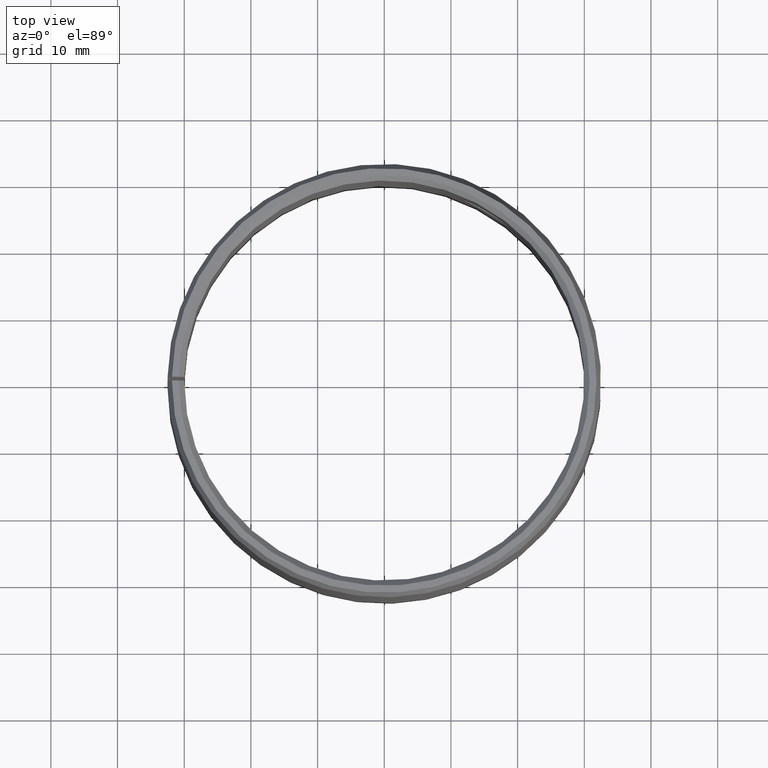
[diagram: clean part render]
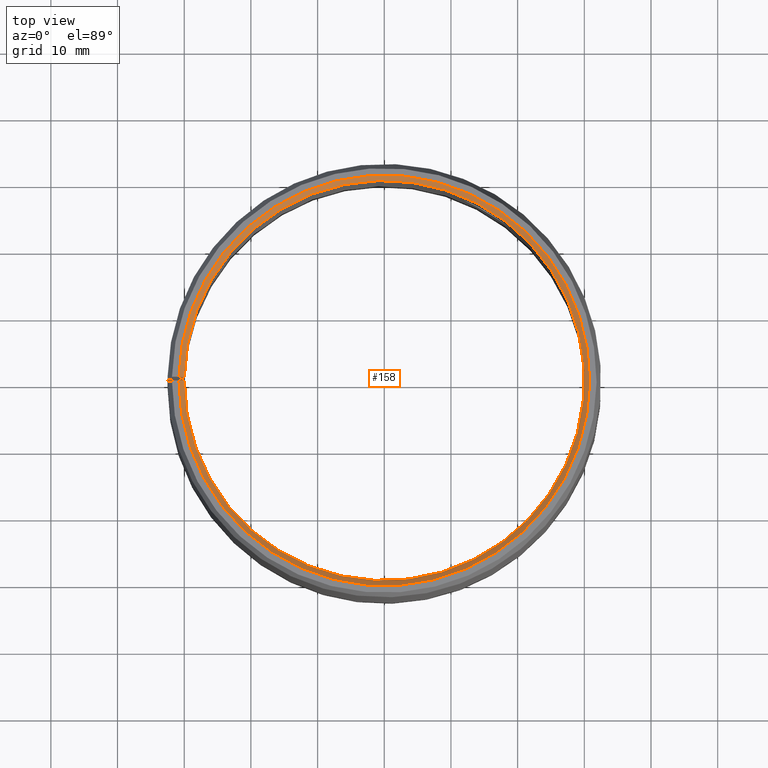
[diagram: same view with one face highlighted and labeled with its STEP entity id]
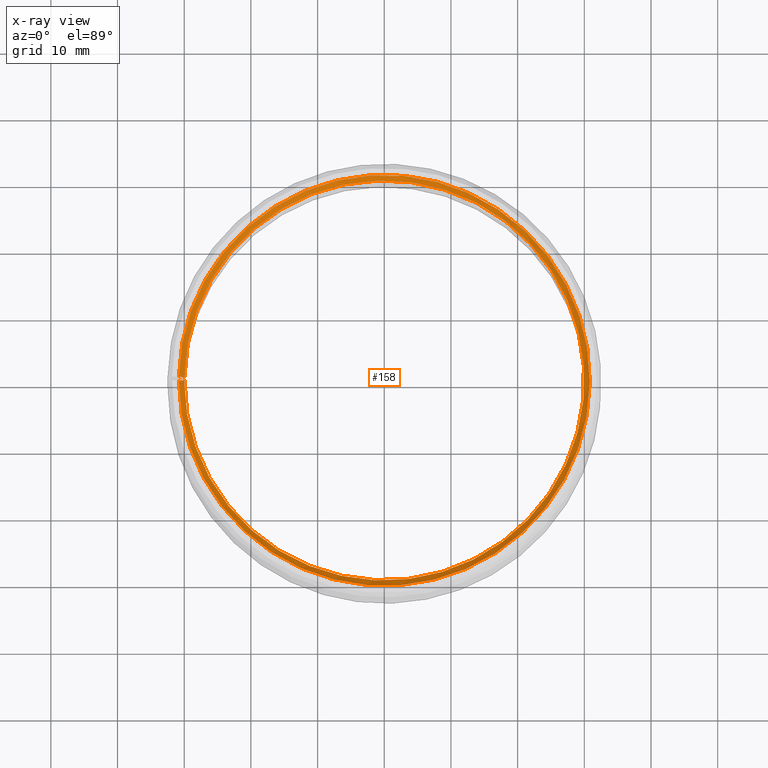
[diagram: x-ray of the same camera — body ghosted, the highlighted face saturated]
A machine part, top view. The second image highlights one B-rep face of the part: STEP entity #158.
The next image is the same camera in x-ray: the body ghosted, the highlighted face saturated — about 0% of this face is hidden behind the body in this view.
In plain terms, the highlighted conical surface has half-angle 45 deg.
Its self-contained STEP definition (entity closure, byte-faithful):
#158=ADVANCED_FACE('',(#176),#177,.F.);
#176=FACE_OUTER_BOUND('',#202,.T.);
#177=CONICAL_SURFACE('',#203,0.0308,0.785398163397448);
#202=EDGE_LOOP('',(#252,#253,#254,#255));
#203=AXIS2_PLACEMENT_3D('',#256,#257,#258);
#252=ORIENTED_EDGE('',*,*,#319,.T.);
#253=ORIENTED_EDGE('',*,*,#320,.F.);
#254=ORIENTED_EDGE('',*,*,#317,.F.);
#255=ORIENTED_EDGE('',*,*,#321,.T.);
#256=CARTESIAN_POINT('',(-1.04083408558608E-017,-6.93889390390723E-018,0.06));
#257=DIRECTION('',(-6.12323399573677E-017,0.0,1.0));
#258=DIRECTION('',(1.0,0.0,6.12323399573677E-017));
#317=EDGE_CURVE('',#354,#356,#357,.T.);
#319=EDGE_CURVE('',#359,#360,#361,.T.);
#320=EDGE_CURVE('',#356,#360,#362,.T.);
#321=EDGE_CURVE('',#354,#359,#363,.T.);
#354=VERTEX_POINT('',#406);
#356=VERTEX_POINT('',#409);
#357=CIRCLE('',#410,0.0308);
#359=VERTEX_POINT('',#413);
#360=VERTEX_POINT('',#414);
#361=CIRCLE('',#415,0.03);
#362=LINE('',#416,#417);
#363=LINE('',#418,#419);
#406=CARTESIAN_POINT('',(0.000537534118268323,0.0307953090108169,0.06));
#409=CARTESIAN_POINT('',(-1.04083408558608E-017,0.0308,0.06));
#410=AXIS2_PLACEMENT_3D('',#589,#590,#591);
#413=CARTESIAN_POINT('',(0.000523572193118497,0.0299954308546918,0.0592));
#414=CARTESIAN_POINT('',(-1.04083408558608E-017,0.03,0.0592));
#415=AXIS2_PLACEMENT_3D('',#593,#594,#595);
#416=CARTESIAN_POINT('',(-1.04083408558608E-017,0.0308,0.06));
#417=VECTOR('',#596,1.0);
#418=CARTESIAN_POINT('',(0.000537534118268323,0.0307953090108169,0.06));
#419=VECTOR('',#597,1.0);
#589=CARTESIAN_POINT('',(-1.04083408558608E-017,-6.93889390390723E-018,0.06));
#590=DIRECTION('',(6.12323399573677E-017,0.0,-1.0));
#591=DIRECTION('',(-1.0,0.0,-6.12323399573677E-017));
#593=CARTESIAN_POINT('',(-1.04083408558608E-017,-6.93889390390723E-018,0.0592));
#594=DIRECTION('',(6.12323399573677E-017,0.0,-1.0));
#595=DIRECTION('',(-1.0,0.0,-6.12323399573677E-017));
#596=DIRECTION('',(0.0,-0.707106781186548,-0.707106781186548));
#597=DIRECTION('',(-0.012340714939827,-0.706999085398824,-0.707106781186548));